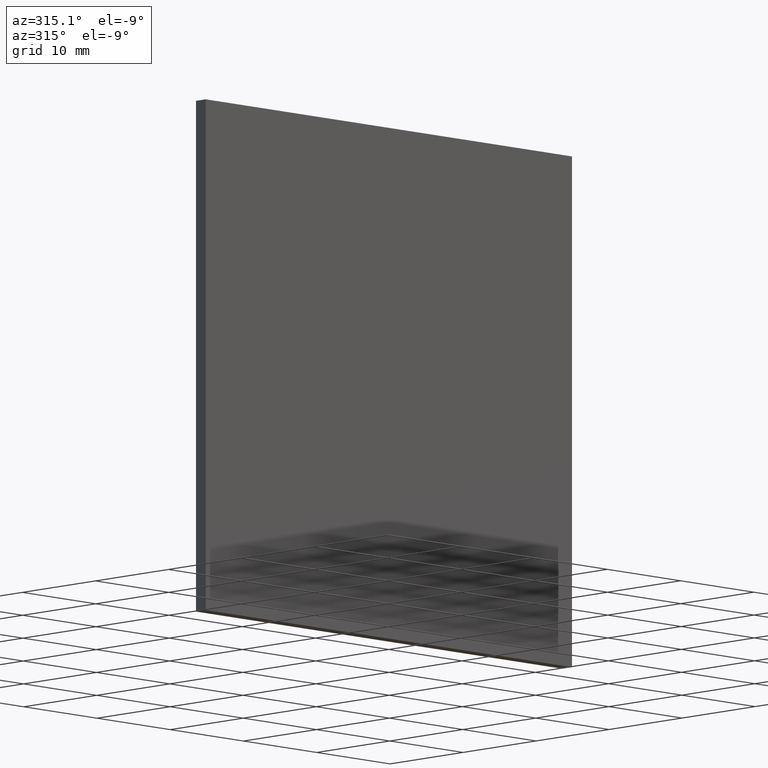
[diagram: clean part render]
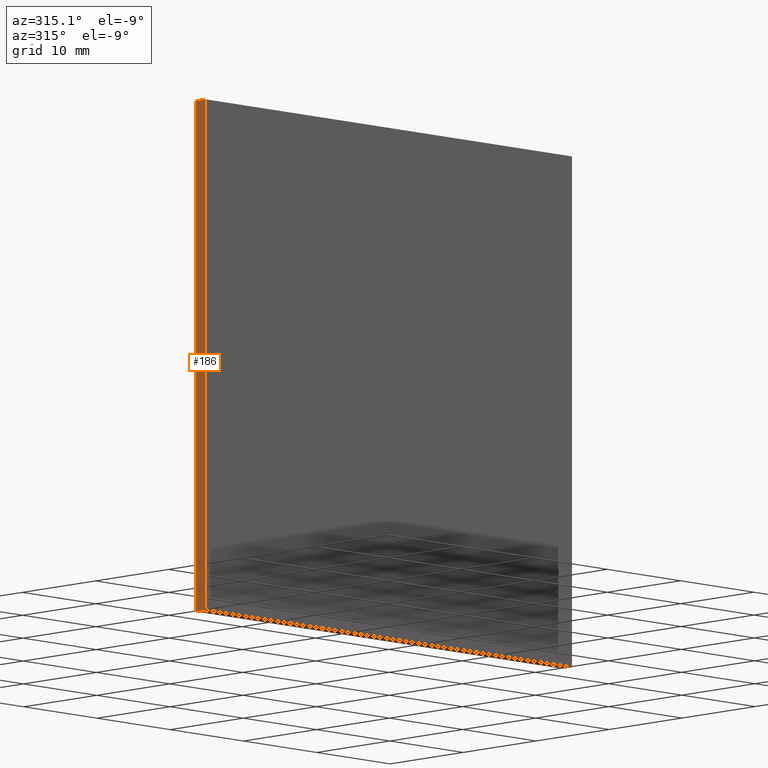
[diagram: same view with one face highlighted and labeled with its STEP entity id]
A machine part, auxiliary view. The second image highlights one B-rep face of the part: STEP entity #186.
In plain terms, the highlighted planar face has unit normal (1, -0, 0).
Its self-contained STEP definition (entity closure, byte-faithful):
#4 = ORIENTED_EDGE ( 'NONE', *, *, #121, .F. ) ;
#9 = VECTOR ( 'NONE', #26, 1000.000000000000000 ) ;
#12 = VERTEX_POINT ( 'NONE', #144 ) ;
#13 = DIRECTION ( 'NONE',  ( 1.000000000000000000, -0.0000000000000000000, 0.0000000000000000000 ) ) ;
#22 = ORIENTED_EDGE ( 'NONE', *, *, #106, .F. ) ;
#26 = DIRECTION ( 'NONE',  ( -0.0000000000000000000, -1.000000000000000000, -0.0000000000000000000 ) ) ;
#28 = DIRECTION ( 'NONE',  ( -0.0000000000000000000, -0.0000000000000000000, 1.000000000000000000 ) ) ;
#48 = LINE ( 'NONE', #54, #171 ) ;
#49 = AXIS2_PLACEMENT_3D ( 'NONE', #202, #13, #118 ) ;
#50 = VERTEX_POINT ( 'NONE', #77 ) ;
#54 = CARTESIAN_POINT ( 'NONE',  ( -25.00000000000000000, 1.330000000000000100, -25.00000000000000000 ) ) ;
#55 = DIRECTION ( 'NONE',  ( -0.0000000000000000000, -0.0000000000000000000, 1.000000000000000000 ) ) ;
#69 = VECTOR ( 'NONE', #55, 1000.000000000000000 ) ;
#77 = CARTESIAN_POINT ( 'NONE',  ( -25.00000000000000000, 0.0000000000000000000, 25.00000000000000000 ) ) ;
#83 = PLANE ( 'NONE',  #49 ) ;
#87 = VERTEX_POINT ( 'NONE', #160 ) ;
#91 = ORIENTED_EDGE ( 'NONE', *, *, #164, .T. ) ;
#94 = CARTESIAN_POINT ( 'NONE',  ( -25.00000000000000000, 1.330000000000000100, 25.00000000000000000 ) ) ;
#95 = EDGE_CURVE ( 'NONE', #104, #12, #48, .T. ) ;
#96 = CARTESIAN_POINT ( 'NONE',  ( -25.00000000000000000, 0.0000000000000000000, 25.00000000000000000 ) ) ;
#104 = VERTEX_POINT ( 'NONE', #149 ) ;
#106 = EDGE_CURVE ( 'NONE', #87, #50, #125, .T. ) ;
#117 = LINE ( 'NONE', #96, #188 ) ;
#118 = DIRECTION ( 'NONE',  ( 0.0000000000000000000, 0.0000000000000000000, -1.000000000000000000 ) ) ;
#121 = EDGE_CURVE ( 'NONE', #104, #87, #124, .T. ) ;
#124 = LINE ( 'NONE', #94, #69 ) ;
#125 = LINE ( 'NONE', #197, #9 ) ;
#131 = EDGE_LOOP ( 'NONE', ( #91, #22, #4, #169 ) ) ;
#144 = CARTESIAN_POINT ( 'NONE',  ( -25.00000000000000000, 0.0000000000000000000, -25.00000000000000000 ) ) ;
#149 = CARTESIAN_POINT ( 'NONE',  ( -25.00000000000000000, 1.330000000000000100, -25.00000000000000000 ) ) ;
#157 = FACE_OUTER_BOUND ( 'NONE', #131, .T. ) ;
#160 = CARTESIAN_POINT ( 'NONE',  ( -25.00000000000000000, 1.330000000000000100, 25.00000000000000000 ) ) ;
#162 = DIRECTION ( 'NONE',  ( -0.0000000000000000000, -1.000000000000000000, -0.0000000000000000000 ) ) ;
#164 = EDGE_CURVE ( 'NONE', #12, #50, #117, .T. ) ;
#169 = ORIENTED_EDGE ( 'NONE', *, *, #95, .T. ) ;
#171 = VECTOR ( 'NONE', #162, 1000.000000000000000 ) ;
#186 = ADVANCED_FACE ( 'NONE', ( #157 ), #83, .F. ) ;
#188 = VECTOR ( 'NONE', #28, 1000.000000000000000 ) ;
#197 = CARTESIAN_POINT ( 'NONE',  ( -25.00000000000000000, 1.330000000000000100, 25.00000000000000000 ) ) ;
#202 = CARTESIAN_POINT ( 'NONE',  ( -25.00000000000000000, 1.330000000000000100, 25.00000000000000000 ) ) ;